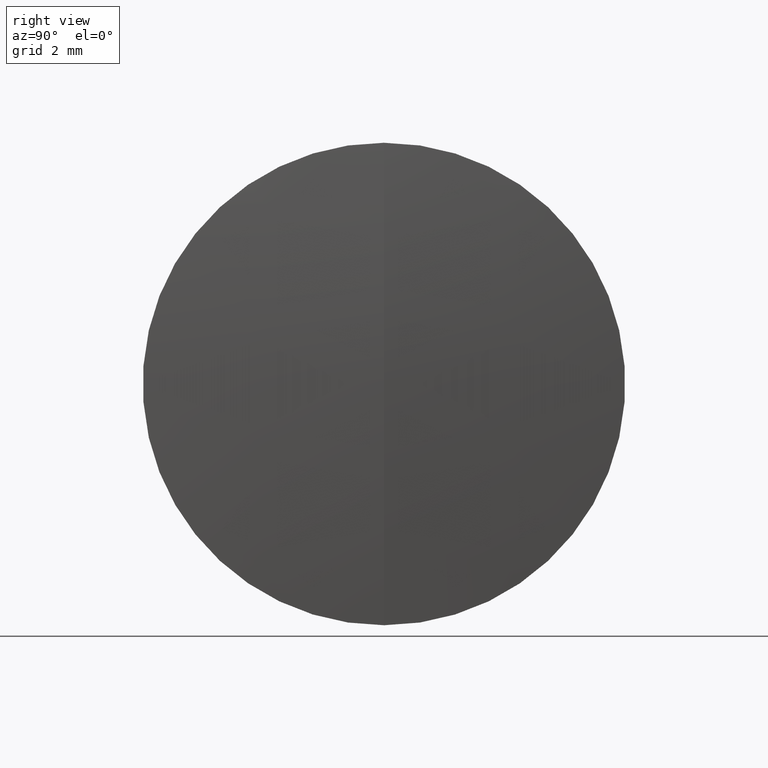
[diagram: clean part render]
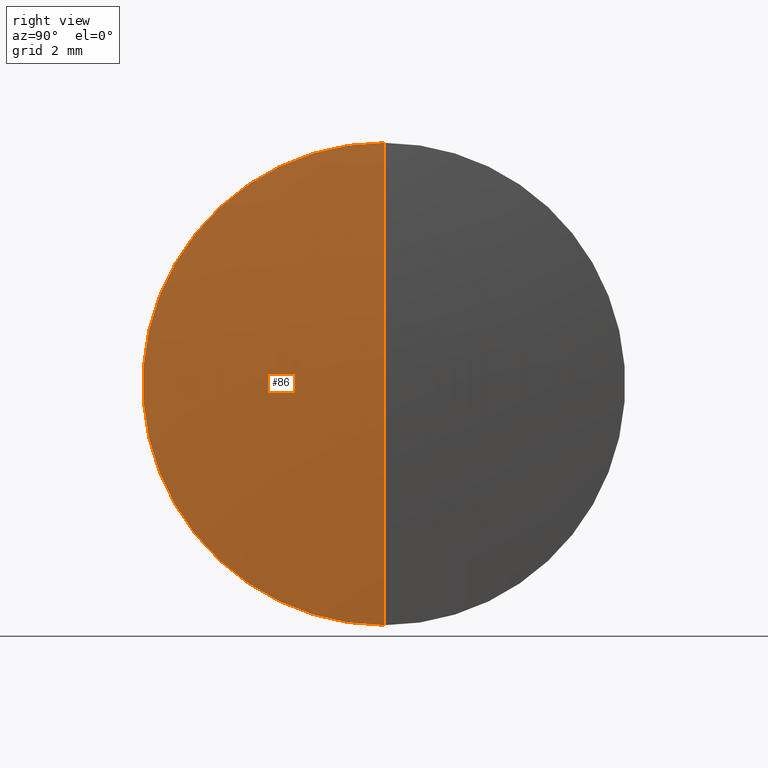
[diagram: same view with one face highlighted and labeled with its STEP entity id]
A machine part, right view. The second image highlights one B-rep face of the part: STEP entity #86.
In plain terms, the highlighted spherical surface has radius 68.1 mm.
Its self-contained STEP definition (entity closure, byte-faithful):
#8 = CARTESIAN_POINT ( 'NONE',  ( 3.477829152970776800, 0.0000000000000000000, 4.169922351096738400E-015 ) ) ;
#9 = DIRECTION ( 'NONE',  ( 0.0000000000000000000, 1.000000000000000000, 0.0000000000000000000 ) ) ;
#21 = AXIS2_PLACEMENT_3D ( 'NONE', #248, #195, #343 ) ;
#34 = AXIS2_PLACEMENT_3D ( 'NONE', #43, #227, #37 ) ;
#36 = FACE_OUTER_BOUND ( 'NONE', #255, .T. ) ;
#37 = DIRECTION ( 'NONE',  ( 0.0000000000000000000, -1.224646799147353200E-016, 1.000000000000000000 ) ) ;
#38 = CARTESIAN_POINT ( 'NONE',  ( -64.62217084702922400, 0.0000000000000000000, 0.0000000000000000000 ) ) ;
#43 = CARTESIAN_POINT ( 'NONE',  ( -64.62217084702922400, 0.0000000000000000000, 0.0000000000000000000 ) ) ;
#63 = VERTEX_POINT ( 'NONE', #8 ) ;
#75 = CARTESIAN_POINT ( 'NONE',  ( 3.181129220150388900, 0.0000000000000000000, 6.350000000000001400 ) ) ;
#86 = ADVANCED_FACE ( 'NONE', ( #36 ), #299, .T. ) ;
#155 = CARTESIAN_POINT ( 'NONE',  ( 3.181129220150388900, 7.776507174585694100E-016, -6.350000000000001400 ) ) ;
#188 = CARTESIAN_POINT ( 'NONE',  ( -64.62217084702922400, 0.0000000000000000000, 0.0000000000000000000 ) ) ;
#192 = EDGE_CURVE ( 'NONE', #63, #322, #252, .T. ) ;
#195 = DIRECTION ( 'NONE',  ( -1.000000000000000000, -0.0000000000000000000, -0.0000000000000000000 ) ) ;
#200 = AXIS2_PLACEMENT_3D ( 'NONE', #38, #223, #310 ) ;
#223 = DIRECTION ( 'NONE',  ( 0.0000000000000000000, -1.000000000000000000, 0.0000000000000000000 ) ) ;
#227 = DIRECTION ( 'NONE',  ( -0.0000000000000000000, 1.000000000000000000, 1.224646799147353200E-016 ) ) ;
#230 = ORIENTED_EDGE ( 'NONE', *, *, #192, .T. ) ;
#235 = EDGE_CURVE ( 'NONE', #340, #322, #261, .T. ) ;
#248 = CARTESIAN_POINT ( 'NONE',  ( 3.181129220150388900, 0.0000000000000000000, 0.0000000000000000000 ) ) ;
#249 = EDGE_CURVE ( 'NONE', #63, #340, #331, .T. ) ;
#252 = CIRCLE ( 'NONE', #200, 68.10000000000000900 ) ;
#255 = EDGE_LOOP ( 'NONE', ( #334, #230, #328 ) ) ;
#261 = CIRCLE ( 'NONE', #21, 6.350000000000001400 ) ;
#270 = DIRECTION ( 'NONE',  ( 0.0000000000000000000, 0.0000000000000000000, 1.000000000000000000 ) ) ;
#296 = AXIS2_PLACEMENT_3D ( 'NONE', #188, #9, #270 ) ;
#299 = SPHERICAL_SURFACE ( 'NONE', #296, 68.10000000000000900 ) ;
#310 = DIRECTION ( 'NONE',  ( 0.0000000000000000000, 0.0000000000000000000, -1.000000000000000000 ) ) ;
#322 = VERTEX_POINT ( 'NONE', #75 ) ;
#328 = ORIENTED_EDGE ( 'NONE', *, *, #235, .F. ) ;
#331 = CIRCLE ( 'NONE', #34, 68.10000000000000900 ) ;
#334 = ORIENTED_EDGE ( 'NONE', *, *, #249, .F. ) ;
#340 = VERTEX_POINT ( 'NONE', #155 ) ;
#343 = DIRECTION ( 'NONE',  ( 0.0000000000000000000, 0.0000000000000000000, 1.000000000000000000 ) ) ;